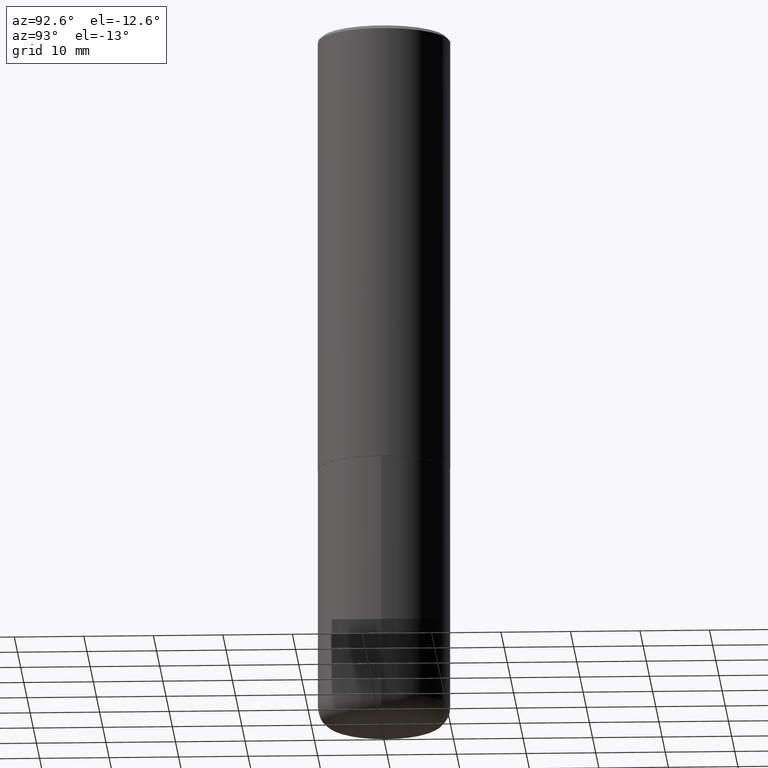
[diagram: clean part render]
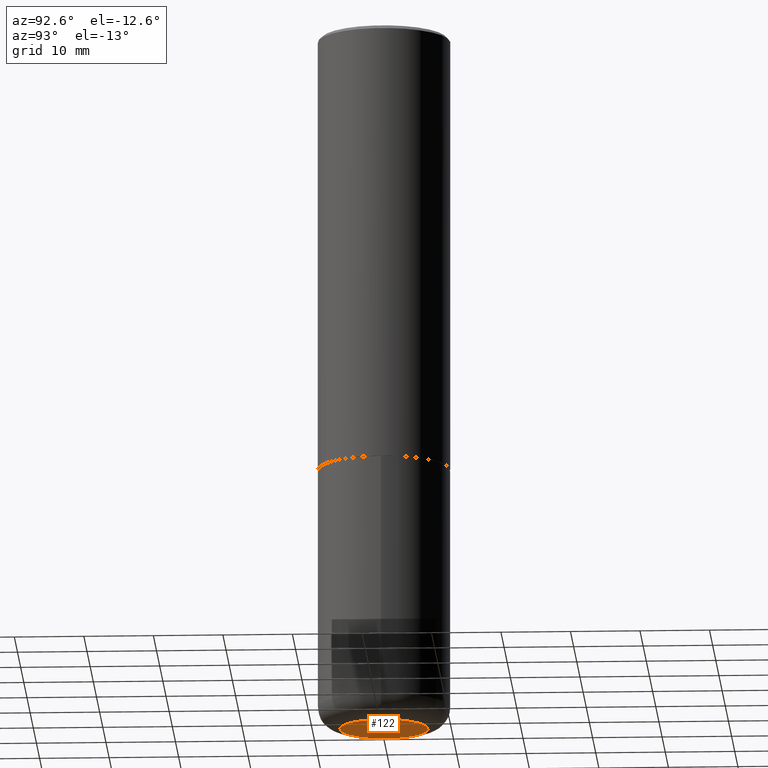
[diagram: same view with one face highlighted and labeled with its STEP entity id]
A machine part, auxiliary view. The second image highlights one B-rep face of the part: STEP entity #122.
In plain terms, the highlighted planar face has unit normal (0, -0, -1).
Its self-contained STEP definition (entity closure, byte-faithful):
#10 = CARTESIAN_POINT ( 'NONE',  ( -0.2500000000000000555, -1.152726172244457105E-14, -4.000000000000000000 ) ) ;
#29 = DIRECTION ( 'NONE',  ( -2.445468806185136597E-29, 3.491481338843145583E-15, 1.000000000000000000 ) ) ;
#52 = AXIS2_PLACEMENT_3D ( 'NONE', #353, #29, #316 ) ;
#71 = VERTEX_POINT ( 'NONE', #10 ) ;
#104 = ORIENTED_EDGE ( 'NONE', *, *, #332, .F. ) ;
#120 = DIRECTION ( 'NONE',  ( 2.438088387897960049E-29, -3.491481338843145188E-15, -1.000000000000000000 ) ) ;
#122 = ADVANCED_FACE ( 'NONE', ( #376 ), #412, .T. ) ;
#124 = DIRECTION ( 'NONE',  ( -1.000000000000000000, 6.982962677686265922E-15, -4.876176775795935793E-29 ) ) ;
#142 = VERTEX_POINT ( 'NONE', #181 ) ;
#180 = CIRCLE ( 'NONE', #213, 0.2500000000000000555 ) ;
#181 = CARTESIAN_POINT ( 'NONE',  ( 0.2500000000000000555, -1.571166602479415059E-14, -4.000000000000000000 ) ) ;
#185 = CARTESIAN_POINT ( 'NONE',  ( 9.781875224740546387E-29, -1.396592535537258233E-14, -4.000000000000000000 ) ) ;
#209 = ORIENTED_EDGE ( 'NONE', *, *, #314, .F. ) ;
#213 = AXIS2_PLACEMENT_3D ( 'NONE', #231, #390, #358 ) ;
#231 = CARTESIAN_POINT ( 'NONE',  ( 9.781875224740546387E-29, -1.396592535537258233E-14, -4.000000000000000000 ) ) ;
#314 = EDGE_CURVE ( 'NONE', #142, #71, #351, .T. ) ;
#316 = DIRECTION ( 'NONE',  ( 1.000000000000000000, -6.982962677686269077E-15, 0.000000000000000000 ) ) ;
#332 = EDGE_CURVE ( 'NONE', #71, #142, #180, .T. ) ;
#350 = AXIS2_PLACEMENT_3D ( 'NONE', #185, #120, #124 ) ;
#351 = CIRCLE ( 'NONE', #52, 0.2500000000000000555 ) ;
#353 = CARTESIAN_POINT ( 'NONE',  ( 9.781875224740546387E-29, -1.396592535537258233E-14, -4.000000000000000000 ) ) ;
#358 = DIRECTION ( 'NONE',  ( 1.000000000000000000, -6.982962677686269077E-15, 0.000000000000000000 ) ) ;
#376 = FACE_OUTER_BOUND ( 'NONE', #399, .T. ) ;
#390 = DIRECTION ( 'NONE',  ( -2.445468806185136597E-29, 3.491481338843145583E-15, 1.000000000000000000 ) ) ;
#399 = EDGE_LOOP ( 'NONE', ( #209, #104 ) ) ;
#412 = PLANE ( 'NONE',  #350 ) ;